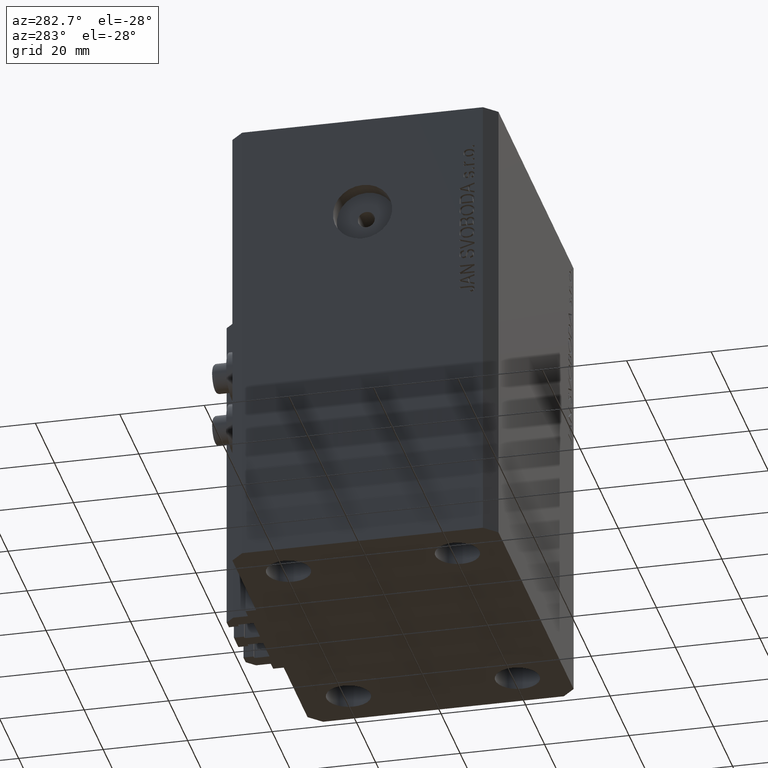
[diagram: clean part render]
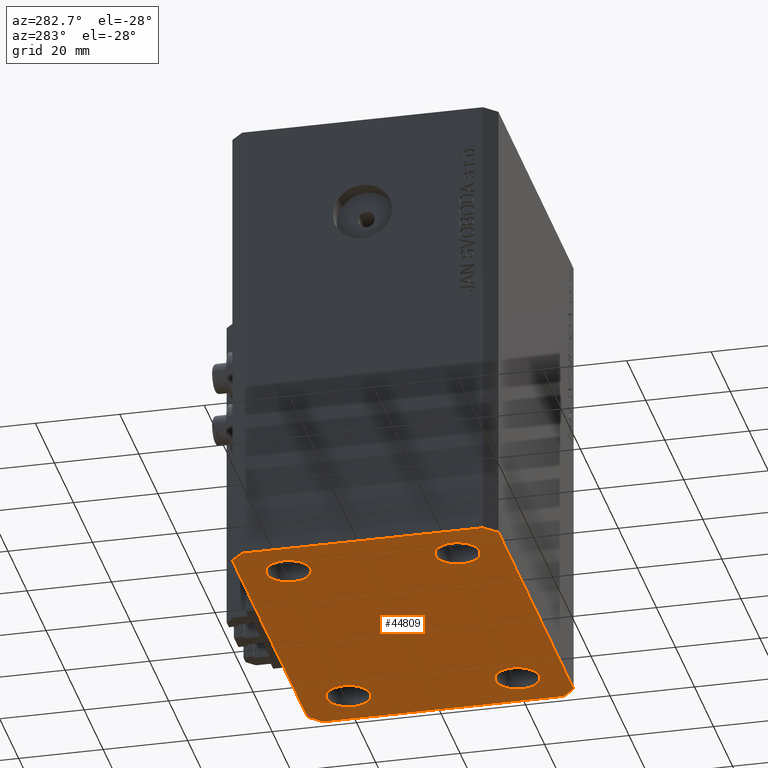
[diagram: same view with one face highlighted and labeled with its STEP entity id]
A machine part, auxiliary view. The second image highlights one B-rep face of the part: STEP entity #44809.
In plain terms, the highlighted planar face has unit normal (0, 0, 1).
Its self-contained STEP definition (entity closure, byte-faithful):
#47 = DIRECTION ( 'NONE',  ( 0.000000000000000000, 0.000000000000000000, 1.000000000000000000 ) ) ;
#935 = VERTEX_POINT ( 'NONE', #21768 ) ;
#1226 = AXIS2_PLACEMENT_3D ( 'NONE', #41430, #37849, #18783 ) ;
#1386 = AXIS2_PLACEMENT_3D ( 'NONE', #34601, #27663, #5453 ) ;
#1685 = EDGE_LOOP ( 'NONE', ( #16494, #6883 ) ) ;
#2076 = CARTESIAN_POINT ( 'NONE',  ( -39.50000000000000711, -31.50000000000000000, -110.0000000000000000 ) ) ;
#3193 = CARTESIAN_POINT ( 'NONE',  ( 31.50000000000000000, 19.99999999999999289, -110.0000000000000000 ) ) ;
#3227 = VERTEX_POINT ( 'NONE', #41639 ) ;
#3769 = EDGE_CURVE ( 'NONE', #40742, #31604, #5654, .T. ) ;
#3867 = VERTEX_POINT ( 'NONE', #4851 ) ;
#4299 = AXIS2_PLACEMENT_3D ( 'NONE', #8629, #27254, #33732 ) ;
#4803 = EDGE_CURVE ( 'NONE', #10182, #3867, #34031, .T. ) ;
#4851 = CARTESIAN_POINT ( 'NONE',  ( 36.74999999999999289, -20.00000000000000355, -110.0000000000000000 ) ) ;
#4949 = DIRECTION ( 'NONE',  ( -0.000000000000000000, -0.000000000000000000, -1.000000000000000000 ) ) ;
#5150 = ORIENTED_EDGE ( 'NONE', *, *, #33303, .F. ) ;
#5453 = DIRECTION ( 'NONE',  ( 1.000000000000000000, 0.000000000000000000, 0.000000000000000000 ) ) ;
#5654 = LINE ( 'NONE', #41718, #8816 ) ;
#6533 = DIRECTION ( 'NONE',  ( 1.000000000000000000, 0.000000000000000000, 0.000000000000000000 ) ) ;
#6883 = ORIENTED_EDGE ( 'NONE', *, *, #21512, .F. ) ;
#7627 = CARTESIAN_POINT ( 'NONE',  ( -26.25000000000000000, 19.99999999999999645, -110.0000000000000000 ) ) ;
#8192 = VECTOR ( 'NONE', #39147, 1000.000000000000000 ) ;
#8629 = CARTESIAN_POINT ( 'NONE',  ( 31.49999999999999289, -20.00000000000000355, -110.0000000000000000 ) ) ;
#8642 = CARTESIAN_POINT ( 'NONE',  ( 36.75000000000000000, 19.99999999999999289, -110.0000000000000000 ) ) ;
#8665 = ORIENTED_EDGE ( 'NONE', *, *, #44611, .F. ) ;
#8816 = VECTOR ( 'NONE', #12828, 1000.000000000000000 ) ;
#9055 = CARTESIAN_POINT ( 'NONE',  ( 26.24999999999999645, -20.00000000000000355, -110.0000000000000000 ) ) ;
#9270 = EDGE_CURVE ( 'NONE', #45348, #3227, #33367, .T. ) ;
#9740 = DIRECTION ( 'NONE',  ( -0.7071067811865356934, 0.7071067811865594521, 0.000000000000000000 ) ) ;
#10182 = VERTEX_POINT ( 'NONE', #9055 ) ;
#10413 = EDGE_CURVE ( 'NONE', #35763, #14977, #25768, .T. ) ;
#11105 = CARTESIAN_POINT ( 'NONE',  ( -42.50000000000000000, 28.50000000000000000, -110.0000000000000000 ) ) ;
#11318 = EDGE_CURVE ( 'NONE', #35837, #935, #39972, .T. ) ;
#11985 = ORIENTED_EDGE ( 'NONE', *, *, #13635, .F. ) ;
#12127 = DIRECTION ( 'NONE',  ( -0.000000000000000000, -0.000000000000000000, -1.000000000000000000 ) ) ;
#12250 = DIRECTION ( 'NONE',  ( 8.886653596232072440E-15, 1.000000000000000000, 0.000000000000000000 ) ) ;
#12518 = VECTOR ( 'NONE', #12250, 1000.000000000000000 ) ;
#12828 = DIRECTION ( 'NONE',  ( 0.7071067811865471286, -0.7071067811865479058, 0.000000000000000000 ) ) ;
#12859 = EDGE_LOOP ( 'NONE', ( #44459, #38572 ) ) ;
#13386 = EDGE_CURVE ( 'NONE', #45925, #20735, #16975, .T. ) ;
#13523 = CARTESIAN_POINT ( 'NONE',  ( -26.24999999999999289, -20.00000000000000355, -110.0000000000000000 ) ) ;
#13635 = EDGE_CURVE ( 'NONE', #37209, #45914, #32121, .T. ) ;
#13731 = EDGE_LOOP ( 'NONE', ( #28469, #16918 ) ) ;
#13938 = AXIS2_PLACEMENT_3D ( 'NONE', #37660, #4949, #19520 ) ;
#14202 = DIRECTION ( 'NONE',  ( -0.7071067811865471286, -0.7071067811865479058, 0.000000000000000000 ) ) ;
#14977 = VERTEX_POINT ( 'NONE', #39464 ) ;
#15143 = EDGE_CURVE ( 'NONE', #3867, #10182, #32504, .T. ) ;
#15471 = CARTESIAN_POINT ( 'NONE',  ( 39.50000000000056843, 31.50000000000000000, -110.0000000000000000 ) ) ;
#16494 = ORIENTED_EDGE ( 'NONE', *, *, #11318, .F. ) ;
#16918 = ORIENTED_EDGE ( 'NONE', *, *, #4803, .F. ) ;
#16975 = LINE ( 'NONE', #27719, #37358 ) ;
#17551 = ORIENTED_EDGE ( 'NONE', *, *, #10413, .F. ) ;
#17977 = VERTEX_POINT ( 'NONE', #11105 ) ;
#18783 = DIRECTION ( 'NONE',  ( 1.000000000000000000, 0.000000000000000000, 0.000000000000000000 ) ) ;
#18811 = CARTESIAN_POINT ( 'NONE',  ( 42.50000000000051870, 28.49999999999995381, -110.0000000000000000 ) ) ;
#19154 = EDGE_LOOP ( 'NONE', ( #11985, #41295 ) ) ;
#19378 = CARTESIAN_POINT ( 'NONE',  ( 39.50000000000000711, -31.50000000000000000, -110.0000000000000000 ) ) ;
#19487 = EDGE_CURVE ( 'NONE', #31604, #45925, #35115, .T. ) ;
#19520 = DIRECTION ( 'NONE',  ( 1.000000000000000000, 0.000000000000000000, 0.000000000000000000 ) ) ;
#19849 = EDGE_CURVE ( 'NONE', #14977, #17977, #43090, .T. ) ;
#19941 = VECTOR ( 'NONE', #9740, 1000.000000000000114 ) ;
#20110 = ORIENTED_EDGE ( 'NONE', *, *, #19487, .F. ) ;
#20508 = ORIENTED_EDGE ( 'NONE', *, *, #13386, .F. ) ;
#20735 = VERTEX_POINT ( 'NONE', #44862 ) ;
#21074 = FACE_OUTER_BOUND ( 'NONE', #35553, .T. ) ;
#21512 = EDGE_CURVE ( 'NONE', #935, #35837, #41031, .T. ) ;
#21652 = AXIS2_PLACEMENT_3D ( 'NONE', #3193, #24691, #6533 ) ;
#21721 = CARTESIAN_POINT ( 'NONE',  ( -42.50000000000000000, -28.50000000000000000, -110.0000000000000000 ) ) ;
#21768 = CARTESIAN_POINT ( 'NONE',  ( -36.74999999999999289, -20.00000000000000355, -110.0000000000000000 ) ) ;
#22682 = DIRECTION ( 'NONE',  ( 0.000000000000000000, -1.000000000000000000, 0.000000000000000000 ) ) ;
#23475 = CARTESIAN_POINT ( 'NONE',  ( 42.50000000000000711, -28.50000000000000355, -110.0000000000000000 ) ) ;
#24550 = VECTOR ( 'NONE', #22682, 1000.000000000000000 ) ;
#24642 = AXIS2_PLACEMENT_3D ( 'NONE', #41701, #30497, #26921 ) ;
#24691 = DIRECTION ( 'NONE',  ( -0.000000000000000000, -0.000000000000000000, -1.000000000000000000 ) ) ;
#25768 = LINE ( 'NONE', #15471, #33897 ) ;
#26004 = DIRECTION ( 'NONE',  ( -1.000000000000000000, 0.000000000000000000, 0.000000000000000000 ) ) ;
#26921 = DIRECTION ( 'NONE',  ( 1.000000000000000000, 0.000000000000000000, 0.000000000000000000 ) ) ;
#27254 = DIRECTION ( 'NONE',  ( -0.000000000000000000, -0.000000000000000000, -1.000000000000000000 ) ) ;
#27663 = DIRECTION ( 'NONE',  ( -0.000000000000000000, -0.000000000000000000, -1.000000000000000000 ) ) ;
#27719 = CARTESIAN_POINT ( 'NONE',  ( 39.50000000000000711, -31.50000000000000000, -110.0000000000000000 ) ) ;
#27940 = CARTESIAN_POINT ( 'NONE',  ( -39.50000000000000711, -31.50000000000000000, -110.0000000000000000 ) ) ;
#28469 = ORIENTED_EDGE ( 'NONE', *, *, #15143, .F. ) ;
#28480 = FACE_BOUND ( 'NONE', #1685, .T. ) ;
#29610 = CARTESIAN_POINT ( 'NONE',  ( 31.50000000000000000, 19.99999999999999289, -110.0000000000000000 ) ) ;
#29847 = DIRECTION ( 'NONE',  ( 1.000000000000000000, 0.000000000000000000, 0.000000000000000000 ) ) ;
#30126 = CARTESIAN_POINT ( 'NONE',  ( 26.25000000000000355, 19.99999999999999289, -110.0000000000000000 ) ) ;
#30291 = CARTESIAN_POINT ( 'NONE',  ( -31.49999999999999289, -20.00000000000000355, -110.0000000000000000 ) ) ;
#30497 = DIRECTION ( 'NONE',  ( -0.000000000000000000, -0.000000000000000000, -1.000000000000000000 ) ) ;
#30722 = CARTESIAN_POINT ( 'NONE',  ( 39.50000000000056843, 31.50000000000000000, -110.0000000000000000 ) ) ;
#31604 = VERTEX_POINT ( 'NONE', #2076 ) ;
#31607 = AXIS2_PLACEMENT_3D ( 'NONE', #30291, #12127, #40319 ) ;
#32121 = CIRCLE ( 'NONE', #37425, 5.249999999999997335 ) ;
#32251 = DIRECTION ( 'NONE',  ( 0.7071067811865483499, 0.7071067811865466846, 0.000000000000000000 ) ) ;
#32504 = CIRCLE ( 'NONE', #4299, 5.249999999999997335 ) ;
#32591 = CARTESIAN_POINT ( 'NONE',  ( -39.50000000000000711, 31.50000000000000000, -110.0000000000000000 ) ) ;
#32764 = FACE_BOUND ( 'NONE', #19154, .T. ) ;
#33303 = EDGE_CURVE ( 'NONE', #34336, #35763, #46029, .T. ) ;
#33367 = CIRCLE ( 'NONE', #13938, 5.250000000000000888 ) ;
#33434 = ORIENTED_EDGE ( 'NONE', *, *, #34093, .F. ) ;
#33732 = DIRECTION ( 'NONE',  ( 1.000000000000000000, 0.000000000000000000, 0.000000000000000000 ) ) ;
#33897 = VECTOR ( 'NONE', #26004, 1000.000000000000000 ) ;
#33908 = LINE ( 'NONE', #41511, #24550 ) ;
#34031 = CIRCLE ( 'NONE', #1226, 5.249999999999997335 ) ;
#34093 = EDGE_CURVE ( 'NONE', #17977, #40742, #33908, .T. ) ;
#34171 = VECTOR ( 'NONE', #14202, 1000.000000000000000 ) ;
#34336 = VERTEX_POINT ( 'NONE', #18811 ) ;
#34601 = CARTESIAN_POINT ( 'NONE',  ( -31.49999999999999289, -20.00000000000000355, -110.0000000000000000 ) ) ;
#35115 = LINE ( 'NONE', #27940, #8192 ) ;
#35553 = EDGE_LOOP ( 'NONE', ( #17551, #5150, #8665, #20508, #20110, #40667, #33434, #36009 ) ) ;
#35763 = VERTEX_POINT ( 'NONE', #30722 ) ;
#35837 = VERTEX_POINT ( 'NONE', #13523 ) ;
#36009 = ORIENTED_EDGE ( 'NONE', *, *, #19849, .F. ) ;
#37209 = VERTEX_POINT ( 'NONE', #8642 ) ;
#37358 = VECTOR ( 'NONE', #32251, 1000.000000000000000 ) ;
#37425 = AXIS2_PLACEMENT_3D ( 'NONE', #29610, #40338, #29847 ) ;
#37660 = CARTESIAN_POINT ( 'NONE',  ( -31.50000000000000000, 19.99999999999999645, -110.0000000000000000 ) ) ;
#37849 = DIRECTION ( 'NONE',  ( -0.000000000000000000, -0.000000000000000000, -1.000000000000000000 ) ) ;
#38358 = CIRCLE ( 'NONE', #24642, 5.250000000000000888 ) ;
#38389 = CIRCLE ( 'NONE', #21652, 5.249999999999997335 ) ;
#38483 = EDGE_CURVE ( 'NONE', #3227, #45348, #38358, .T. ) ;
#38572 = ORIENTED_EDGE ( 'NONE', *, *, #38483, .F. ) ;
#39041 = EDGE_CURVE ( 'NONE', #45914, #37209, #38389, .T. ) ;
#39147 = DIRECTION ( 'NONE',  ( 1.000000000000000000, 0.000000000000000000, 0.000000000000000000 ) ) ;
#39214 = AXIS2_PLACEMENT_3D ( 'NONE', #43509, #47, #39907 ) ;
#39464 = CARTESIAN_POINT ( 'NONE',  ( -39.50000000000000711, 31.50000000000000000, -110.0000000000000000 ) ) ;
#39675 = PLANE ( 'NONE',  #39214 ) ;
#39907 = DIRECTION ( 'NONE',  ( 1.000000000000000000, 0.000000000000000000, -0.000000000000000000 ) ) ;
#39972 = CIRCLE ( 'NONE', #31607, 5.250000000000000888 ) ;
#40319 = DIRECTION ( 'NONE',  ( 1.000000000000000000, 0.000000000000000000, 0.000000000000000000 ) ) ;
#40338 = DIRECTION ( 'NONE',  ( -0.000000000000000000, -0.000000000000000000, -1.000000000000000000 ) ) ;
#40667 = ORIENTED_EDGE ( 'NONE', *, *, #3769, .F. ) ;
#40742 = VERTEX_POINT ( 'NONE', #21721 ) ;
#41031 = CIRCLE ( 'NONE', #1386, 5.250000000000000888 ) ;
#41295 = ORIENTED_EDGE ( 'NONE', *, *, #39041, .F. ) ;
#41430 = CARTESIAN_POINT ( 'NONE',  ( 31.49999999999999289, -20.00000000000000355, -110.0000000000000000 ) ) ;
#41511 = CARTESIAN_POINT ( 'NONE',  ( -42.50000000000000000, 28.50000000000000000, -110.0000000000000000 ) ) ;
#41639 = CARTESIAN_POINT ( 'NONE',  ( -36.75000000000000000, 19.99999999999999645, -110.0000000000000000 ) ) ;
#41701 = CARTESIAN_POINT ( 'NONE',  ( -31.50000000000000000, 19.99999999999999645, -110.0000000000000000 ) ) ;
#41718 = CARTESIAN_POINT ( 'NONE',  ( -42.50000000000000000, -28.50000000000000000, -110.0000000000000000 ) ) ;
#42453 = CARTESIAN_POINT ( 'NONE',  ( 42.50000000000051870, 28.49999999999995381, -110.0000000000000000 ) ) ;
#43090 = LINE ( 'NONE', #32591, #34171 ) ;
#43509 = CARTESIAN_POINT ( 'NONE',  ( 0.000000000000000000, 0.000000000000000000, -110.0000000000000000 ) ) ;
#43746 = FACE_BOUND ( 'NONE', #12859, .T. ) ;
#44459 = ORIENTED_EDGE ( 'NONE', *, *, #9270, .F. ) ;
#44611 = EDGE_CURVE ( 'NONE', #20735, #34336, #44966, .T. ) ;
#44809 = ADVANCED_FACE ( 'NONE', ( #28480, #46600, #32764, #43746, #21074 ), #39675, .F. ) ;
#44862 = CARTESIAN_POINT ( 'NONE',  ( 42.50000000000000711, -28.50000000000000355, -110.0000000000000000 ) ) ;
#44966 = LINE ( 'NONE', #23475, #12518 ) ;
#45348 = VERTEX_POINT ( 'NONE', #7627 ) ;
#45914 = VERTEX_POINT ( 'NONE', #30126 ) ;
#45925 = VERTEX_POINT ( 'NONE', #19378 ) ;
#46029 = LINE ( 'NONE', #42453, #19941 ) ;
#46600 = FACE_BOUND ( 'NONE', #13731, .T. ) ;